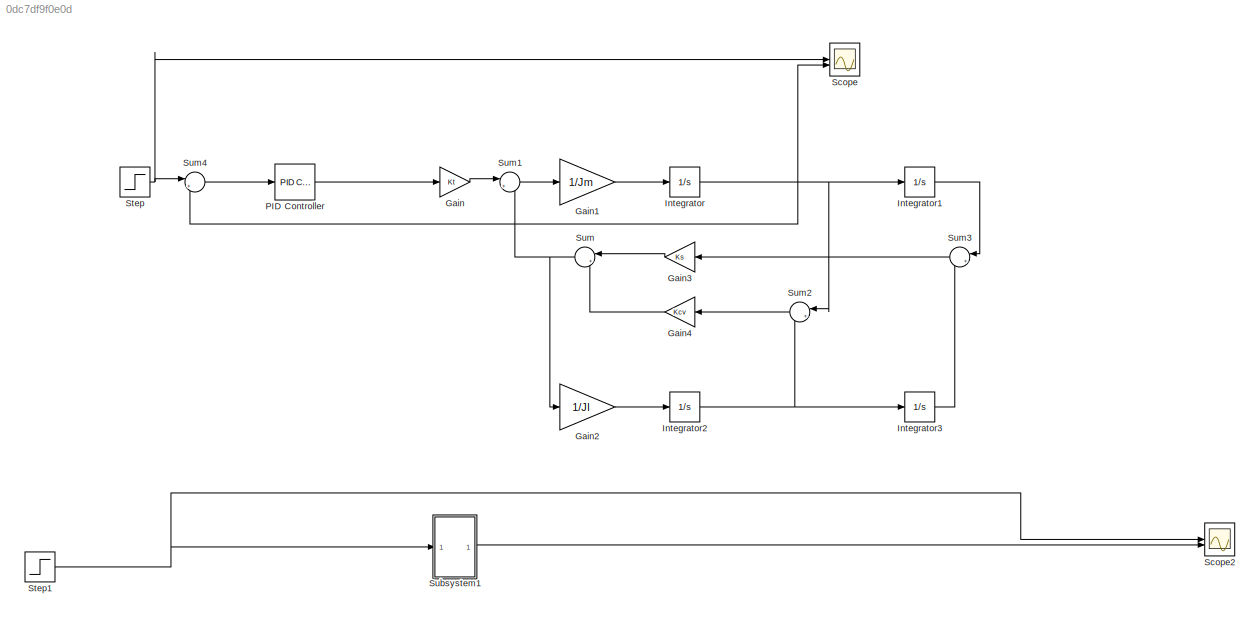
MODEL slx_0dc7df9f0e0d
KIND model
CONFIG AbsTol = auto
CONFIG EnableMultiTasking = off
CONFIG FixedStep = 0.000001
CONFIG MaxStep = auto
CONFIG MinStep = auto
CONFIG RelTol = 1e-3
CONFIG SampleTimeConstraint = Unconstrained
CONFIG SolverName = FixedStepAuto
CONFIG StartTime = 0.0
CONFIG StopTime = 2
BLOCK [Gain] Gain
  Gain = Kt
BLOCK [Gain] Gain1
  Gain = 1/Jm
BLOCK [Gain] Gain2
  Gain = 1/Jl
BLOCK [Gain] Gain3
  Gain = Ks
  NameLocation = top
BLOCK [Gain] Gain4
  Gain = Kcv
  NameLocation = top
BLOCK [Integrator] Integrator
BLOCK [Integrator] Integrator1
BLOCK [Integrator] Integrator2
BLOCK [Integrator] Integrator3
BLOCK [Reference] PID Controller  REF=slpidlib/PID Controller
  LibrarySourceBlock = simulink/Continuous/PID Controller
  SourceBlock = slpidlib/PID Controller
  SourceType = PID 1dof
BLOCK [Scope] Scope
  Floating = off
  NumInputPorts = 2
  ScopeSpecificationString = Simulink.scopes.TimeScopeBlockCfg('CurrentConfiguration', extmgr.ConfigurationSet(extmgr.Configuration('Core','General UI',true),extmgr.Configuration('Core','Source UI',true),extmgr.Configuration('Sources','WiredSimulink',true),extmgr.Configuration('Visuals','Time Domain',true,'SerializedDisplays',{struct('MinYLimReal','-0.14103','MaxYLimReal','1.26925','YLabelReal','','MinYLimMag','0.00000','MaxY...<+1396ch>
BLOCK [Scope] Scope2
  Floating = off
  NumInputPorts = 2
  ScopeSpecificationString = Simulink.scopes.TimeScopeBlockCfg('CurrentConfiguration', extmgr.ConfigurationSet(extmgr.Configuration('Core','General UI',true),extmgr.Configuration('Core','Source UI',true),extmgr.Configuration('Sources','WiredSimulink',true,'DataLoggingVariableName','ScopeData2'),extmgr.Configuration('Visuals','Time Domain',true,'SerializedDisplays',{struct('MinYLimReal','-0.2116','MaxYLimReal','1.90438','YLabe...<+1446ch>
BLOCK [Step] Step
  SampleTime = 0
  Time = 0
BLOCK [Step] Step1
  SampleTime = 0
  Time = 0
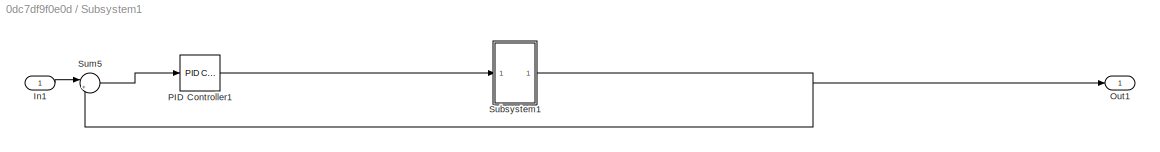
BLOCK [SubSystem] Subsystem1
BLOCK [Inport] Subsystem1/In1
BLOCK [Outport] Subsystem1/Out1
BLOCK [Reference] Subsystem1/PID Controller1  REF=slpidlib/PID Controller
  LibrarySourceBlock = simulink/Continuous/PID Controller
  SourceBlock = slpidlib/PID Controller
  SourceType = PID 1dof
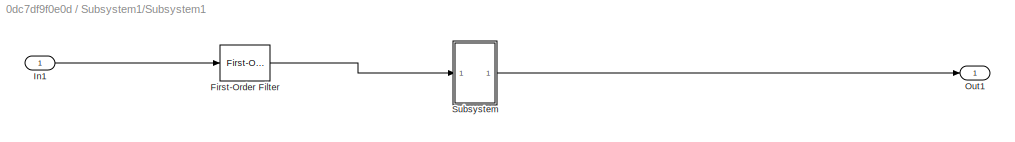
BLOCK [SubSystem] Subsystem1/Subsystem1
BLOCK [Reference] Subsystem1/Subsystem1/First-Order Filter  REF=spsFirstOrderFilterLib/First-Order
Filter
  LibrarySourceBlock = sps_lib/Control/Filters/First-Order\nFilter
  SourceBlock = spsFirstOrderFilterLib/First-Order\nFilter
  SourceType = First-Order Filter
BLOCK [Inport] Subsystem1/Subsystem1/In1
BLOCK [Outport] Subsystem1/Subsystem1/Out1
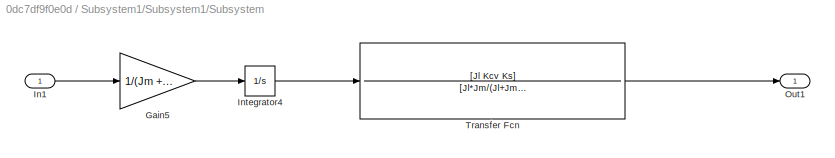
BLOCK [SubSystem] Subsystem1/Subsystem1/Subsystem
BLOCK [Gain] Subsystem1/Subsystem1/Subsystem/Gain5
  Gain = 1/(Jm + Jl)
BLOCK [Inport] Subsystem1/Subsystem1/Subsystem/In1
BLOCK [Integrator] Subsystem1/Subsystem1/Subsystem/Integrator4
BLOCK [Outport] Subsystem1/Subsystem1/Subsystem/Out1
BLOCK [TransferFcn] Subsystem1/Subsystem1/Subsystem/Transfer Fcn
  Denominator = [Jl*Jm/(Jl+Jm) Kcv  Ks ]
  Numerator = [Jl Kcv Ks]
BLOCK [Sum] Subsystem1/Sum5
  Inputs = |+-
BLOCK [Sum] Sum
  Inputs = |++
  NameLocation = top
BLOCK [Sum] Sum1
  Inputs = |+-
BLOCK [Sum] Sum2
  Inputs = |+-
  NameLocation = top
BLOCK [Sum] Sum3
  Inputs = |+-
  NameLocation = top
BLOCK [Sum] Sum4
  Inputs = |+-
LINE Gain1:1 -> Integrator:1
LINE Gain2:1 -> Integrator2:1
LINE Gain3:1 -> Sum:1
LINE Gain4:1 -> Sum:2
LINE Gain:1 -> Sum1:1
LINE Integrator1:1 -> Sum3:1
NET Integrator2:1 -> Integrator3:1, Sum2:2
LINE Integrator3:1 -> Sum3:2
NET Integrator:1 -> Integrator1:1, Scope:2, Sum2:1, Sum4:2
LINE PID Controller:1 -> Gain:1
NET Step1:1 -> Scope2:1, Subsystem1:1
NET Step:1 -> Scope:1, Sum4:1
LINE Subsystem1/In1:1 -> Subsystem1/Sum5:1
LINE Subsystem1/PID Controller1:1 -> Subsystem1/Subsystem1:1
LINE Subsystem1/Subsystem1/First-Order Filter:1 -> Subsystem1/Subsystem1/Subsystem:1
LINE Subsystem1/Subsystem1/In1:1 -> Subsystem1/Subsystem1/First-Order Filter:1
LINE Subsystem1/Subsystem1/Subsystem/Gain5:1 -> Subsystem1/Subsystem1/Subsystem/Integrator4:1
LINE Subsystem1/Subsystem1/Subsystem/In1:1 -> Subsystem1/Subsystem1/Subsystem/Gain5:1
LINE Subsystem1/Subsystem1/Subsystem/Integrator4:1 -> Subsystem1/Subsystem1/Subsystem/Transfer Fcn:1
LINE Subsystem1/Subsystem1/Subsystem/Transfer Fcn:1 -> Subsystem1/Subsystem1/Subsystem/Out1:1
LINE Subsystem1/Subsystem1/Subsystem:1 -> Subsystem1/Subsystem1/Out1:1
NET Subsystem1/Subsystem1:1 -> Subsystem1/Out1:1, Subsystem1/Sum5:2
LINE Subsystem1/Sum5:1 -> Subsystem1/PID Controller1:1
LINE Subsystem1:1 -> Scope2:2
LINE Sum1:1 -> Gain1:1
LINE Sum2:1 -> Gain4:1
LINE Sum3:1 -> Gain3:1
LINE Sum4:1 -> PID Controller:1
NET Sum:1 -> Gain2:1, Sum1:2
note: NET lines group one-source signal fan-out (src -> all destinations, sorted); 1:1 wires keep LINE
